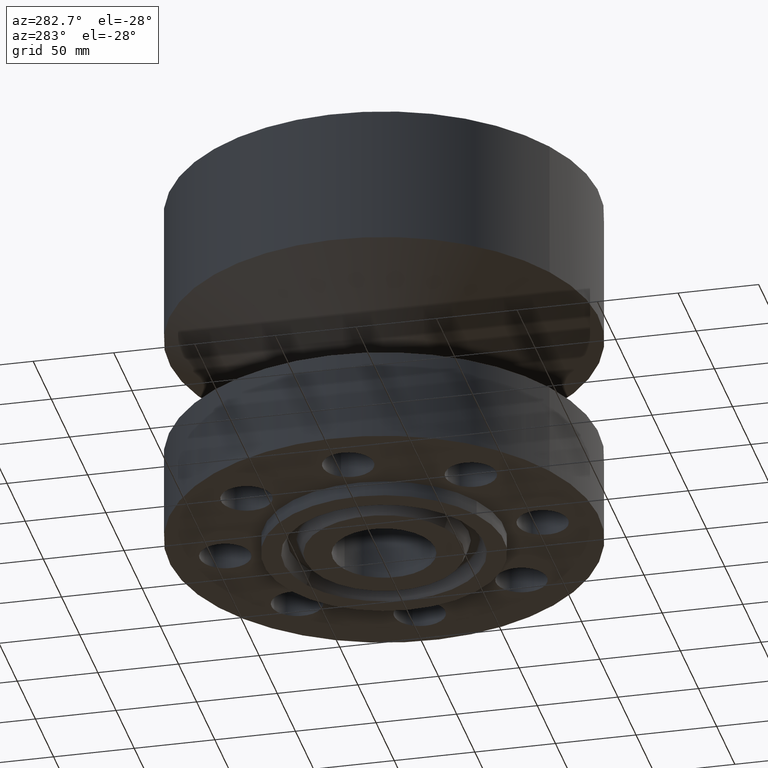
[diagram: clean part render]
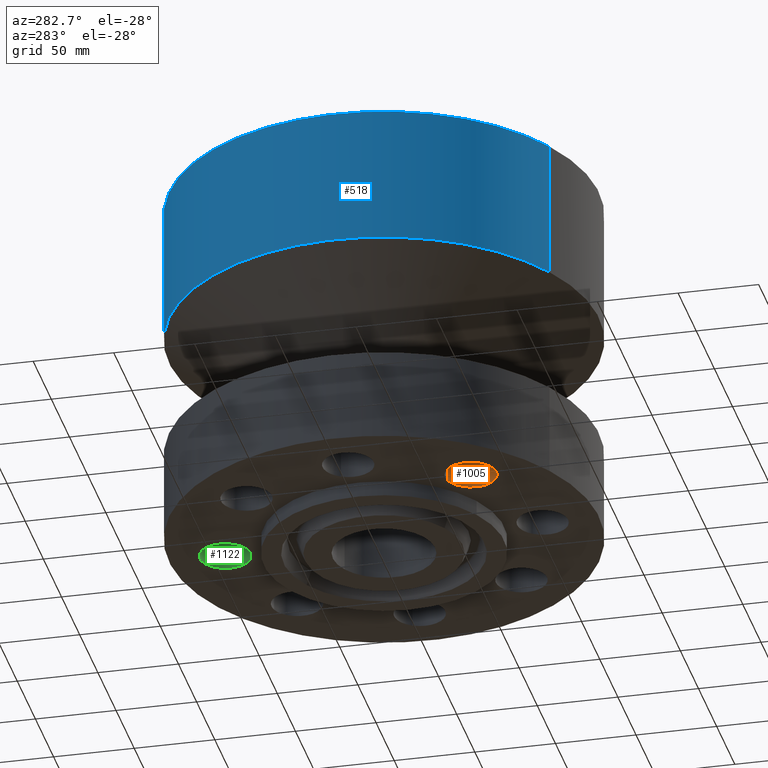
[diagram: same view with three faces highlighted in distinct colors, each labeled with its STEP entity id]
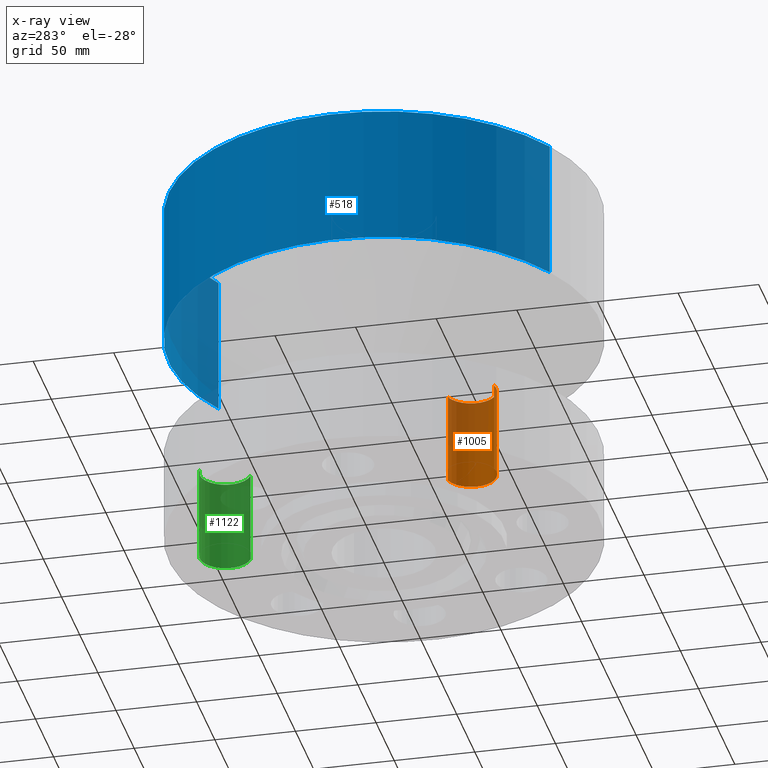
[diagram: x-ray of the same camera — body ghosted, the three highlighted faces saturated]
A machine part, auxiliary view with three faces highlighted in distinct colors.
The next image is the same camera in x-ray (body ghosted, the three faces saturated) — at least one of them is partly hidden behind the body in this view.
Their STEP definitions:

[orange] entity #1005 — the highlighted cylindrical surface (edge-blend (fillet) strip) has radius 15.875 mm, axis along (0, 0, 1).
#172=AXIS2_PLACEMENT_3D('Circle Axis2P3D',#170,#171,$) ;
#966=AXIS2_PLACEMENT_3D('Cylinder Axis2P3D',#963,#964,#965) ;
#996=AXIS2_PLACEMENT_3D('Circle Axis2P3D',#994,#995,$) ;
#165=CARTESIAN_POINT('Vertex',(-2.91600098407,-3.33975729585,0.)) ;
#167=CARTESIAN_POINT('Vertex',(-2.56407657014,-2.14032025837,0.)) ;
#170=CARTESIAN_POINT('Axis2P3D Location',(-2.74003877711,-2.74003877711,0.)) ;
#963=CARTESIAN_POINT('Axis2P3D Location',(-2.74003877711,-2.74003877711,0.00393700787402)) ;
#968=CARTESIAN_POINT('Line Origine',(-2.91600098407,-3.33975729585,1.125)) ;
#972=CARTESIAN_POINT('Vertex',(-2.91600098407,-3.33975729585,2.25000000001)) ;
#975=CARTESIAN_POINT('Line Origine',(-2.56407657014,-2.14032025837,1.125)) ;
#979=CARTESIAN_POINT('Vertex',(-2.56407657014,-2.14032025837,2.25000000001)) ;
#994=CARTESIAN_POINT('Axis2P3D Location',(-2.74003877711,-2.74003877711,2.25000000001)) ;
#171=DIRECTION('Axis2P3D Direction',(0.,0.,-0.0393700787402)) ;
#964=DIRECTION('Axis2P3D Direction',(0.,0.,0.0393700787402)) ;
#965=DIRECTION('Axis2P3D XDirection',(-0.0110842335096,-0.0377775444876,0.)) ;
#969=DIRECTION('Vector Direction',(0.,0.,0.0393700787402)) ;
#976=DIRECTION('Vector Direction',(0.,0.,0.0393700787402)) ;
#995=DIRECTION('Axis2P3D Direction',(0.,0.,0.0393700787402)) ;
#970=VECTOR('Line Direction',#969,0.0393700787402) ;
#977=VECTOR('Line Direction',#976,0.0393700787402) ;
#1000=ORIENTED_EDGE('',*,*,#981,.T.) ;
#1001=ORIENTED_EDGE('',*,*,#174,.T.) ;
#1002=ORIENTED_EDGE('',*,*,#974,.F.) ;
#1003=ORIENTED_EDGE('',*,*,#998,.F.) ;
#1005=ADVANCED_FACE('PartBody',(#1004),#967,.F.) ;
#173=CIRCLE('generated circle',#172,0.625000000003) ;
#997=CIRCLE('generated circle',#996,0.625000000002) ;
#967=CYLINDRICAL_SURFACE('generated cylinder',#966,0.625000000002) ;
#174=EDGE_CURVE('',#168,#166,#173,.T.) ;
#974=EDGE_CURVE('',#973,#166,#971,.F.) ;
#981=EDGE_CURVE('',#980,#168,#978,.F.) ;
#998=EDGE_CURVE('',#980,#973,#997,.F.) ;
#999=EDGE_LOOP('',(#1000,#1001,#1002,#1003)) ;
#1004=FACE_OUTER_BOUND('',#999,.T.) ;
#971=LINE('Line',#968,#970) ;
#978=LINE('Line',#975,#977) ;
#166=VERTEX_POINT('',#165) ;
#168=VERTEX_POINT('',#167) ;
#973=VERTEX_POINT('',#972) ;
#980=VERTEX_POINT('',#979) ;

[blue] entity #518 — the highlighted cylindrical surface (partial cylindrical patch) has radius 133.35 mm, axis along (0, 0, -1).
#255=AXIS2_PLACEMENT_3D('Cylinder Axis2P3D',#252,#253,#254) ;
#471=AXIS2_PLACEMENT_3D('Circle Axis2P3D',#469,#470,$) ;
#509=AXIS2_PLACEMENT_3D('Circle Axis2P3D',#507,#508,$) ;
#252=CARTESIAN_POINT('Axis2P3D Location',(0.,0.,4.18750000002)) ;
#447=CARTESIAN_POINT('Vertex',(2.51698407768,4.60730844994,5.36205080759)) ;
#454=CARTESIAN_POINT('Vertex',(-2.51698407768,-4.60730844994,5.36205080759)) ;
#469=CARTESIAN_POINT('Axis2P3D Location',(0.,0.,5.36205080759)) ;
#481=CARTESIAN_POINT('Line Origine',(2.51698407768,4.60730844994,7.05602540381)) ;
#485=CARTESIAN_POINT('Vertex',(2.51698407768,4.60730844994,8.75000000004)) ;
#492=CARTESIAN_POINT('Vertex',(-2.51698407768,-4.60730844994,8.75000000004)) ;
#495=CARTESIAN_POINT('Line Origine',(-2.51698407768,-4.60730844994,7.05602540381)) ;
#507=CARTESIAN_POINT('Axis2P3D Location',(0.,0.,8.75000000004)) ;
#253=DIRECTION('Axis2P3D Direction',(0.,0.,-0.0393700787402)) ;
#254=DIRECTION('Axis2P3D XDirection',(-0.0188750212049,-0.0345504945626,0.)) ;
#470=DIRECTION('Axis2P3D Direction',(-0.,0.,0.0393700787402)) ;
#482=DIRECTION('Vector Direction',(0.,0.,-0.0393700787402)) ;
#496=DIRECTION('Vector Direction',(0.,0.,-0.0393700787402)) ;
#508=DIRECTION('Axis2P3D Direction',(0.,0.,-0.0393700787402)) ;
#483=VECTOR('Line Direction',#482,0.0393700787402) ;
#497=VECTOR('Line Direction',#496,0.0393700787402) ;
#513=ORIENTED_EDGE('',*,*,#473,.F.) ;
#514=ORIENTED_EDGE('',*,*,#499,.T.) ;
#515=ORIENTED_EDGE('',*,*,#511,.T.) ;
#516=ORIENTED_EDGE('',*,*,#487,.F.) ;
#518=ADVANCED_FACE('PartBody',(#517),#256,.T.) ;
#472=CIRCLE('generated circle',#471,5.25000000002) ;
#510=CIRCLE('generated circle',#509,5.25000000002) ;
#256=CYLINDRICAL_SURFACE('generated cylinder',#255,5.25000000002) ;
#473=EDGE_CURVE('',#455,#448,#472,.F.) ;
#487=EDGE_CURVE('',#448,#486,#484,.F.) ;
#499=EDGE_CURVE('',#455,#493,#498,.F.) ;
#511=EDGE_CURVE('',#493,#486,#510,.T.) ;
#512=EDGE_LOOP('',(#513,#514,#515,#516)) ;
#517=FACE_OUTER_BOUND('',#512,.T.) ;
#484=LINE('Line',#481,#483) ;
#498=LINE('Line',#495,#497) ;
#448=VERTEX_POINT('',#447) ;
#455=VERTEX_POINT('',#454) ;
#486=VERTEX_POINT('',#485) ;
#493=VERTEX_POINT('',#492) ;

[green] entity #1122 — the highlighted cylindrical surface (edge-blend (fillet) strip) has radius 15.875 mm, axis along (0, 0, 1).
#217=AXIS2_PLACEMENT_3D('Circle Axis2P3D',#215,#216,$) ;
#1095=AXIS2_PLACEMENT_3D('Cylinder Axis2P3D',#1092,#1093,#1094) ;
#1113=AXIS2_PLACEMENT_3D('Circle Axis2P3D',#1111,#1112,$) ;
#215=CARTESIAN_POINT('Axis2P3D Location',(-4.89547160465E-016,3.87500000002,0.)) ;
#219=CARTESIAN_POINT('Vertex',(-0.299640961629,4.4234891012,0.)) ;
#221=CARTESIAN_POINT('Vertex',(0.299640961629,3.32651089883,0.)) ;
#1092=CARTESIAN_POINT('Axis2P3D Location',(-1.52343482905E-016,3.87500000002,0.00393700787402)) ;
#1097=CARTESIAN_POINT('Line Origine',(-0.299640961629,4.4234891012,1.125)) ;
#1101=CARTESIAN_POINT('Vertex',(-0.299640961629,4.4234891012,2.25000000001)) ;
#1104=CARTESIAN_POINT('Line Origine',(0.299640961629,3.32651089883,1.125)) ;
#1108=CARTESIAN_POINT('Vertex',(0.299640961629,3.32651089883,2.25000000001)) ;
#1111=CARTESIAN_POINT('Axis2P3D Location',(-1.52343482905E-016,3.87500000002,2.25000000001)) ;
#216=DIRECTION('Axis2P3D Direction',(0.,0.,-0.0393700787402)) ;
#1093=DIRECTION('Axis2P3D Direction',(0.,0.,0.0393700787402)) ;
#1094=DIRECTION('Axis2P3D XDirection',(-0.0188750212049,0.0345504945626,0.)) ;
#1098=DIRECTION('Vector Direction',(0.,0.,0.0393700787402)) ;
#1105=DIRECTION('Vector Direction',(0.,0.,0.0393700787402)) ;
#1112=DIRECTION('Axis2P3D Direction',(0.,0.,0.0393700787402)) ;
#1099=VECTOR('Line Direction',#1098,0.0393700787402) ;
#1106=VECTOR('Line Direction',#1105,0.0393700787402) ;
#1117=ORIENTED_EDGE('',*,*,#1103,.T.) ;
#1118=ORIENTED_EDGE('',*,*,#223,.T.) ;
#1119=ORIENTED_EDGE('',*,*,#1110,.F.) ;
#1120=ORIENTED_EDGE('',*,*,#1115,.F.) ;
#1122=ADVANCED_FACE('PartBody',(#1121),#1096,.F.) ;
#218=CIRCLE('generated circle',#217,0.625000000002) ;
#1114=CIRCLE('generated circle',#1113,0.625000000002) ;
#1096=CYLINDRICAL_SURFACE('generated cylinder',#1095,0.625000000002) ;
#223=EDGE_CURVE('',#220,#222,#218,.T.) ;
#1103=EDGE_CURVE('',#1102,#220,#1100,.F.) ;
#1110=EDGE_CURVE('',#1109,#222,#1107,.F.) ;
#1115=EDGE_CURVE('',#1102,#1109,#1114,.F.) ;
#1116=EDGE_LOOP('',(#1117,#1118,#1119,#1120)) ;
#1121=FACE_OUTER_BOUND('',#1116,.T.) ;
#1100=LINE('Line',#1097,#1099) ;
#1107=LINE('Line',#1104,#1106) ;
#220=VERTEX_POINT('',#219) ;
#222=VERTEX_POINT('',#221) ;
#1102=VERTEX_POINT('',#1101) ;
#1109=VERTEX_POINT('',#1108) ;